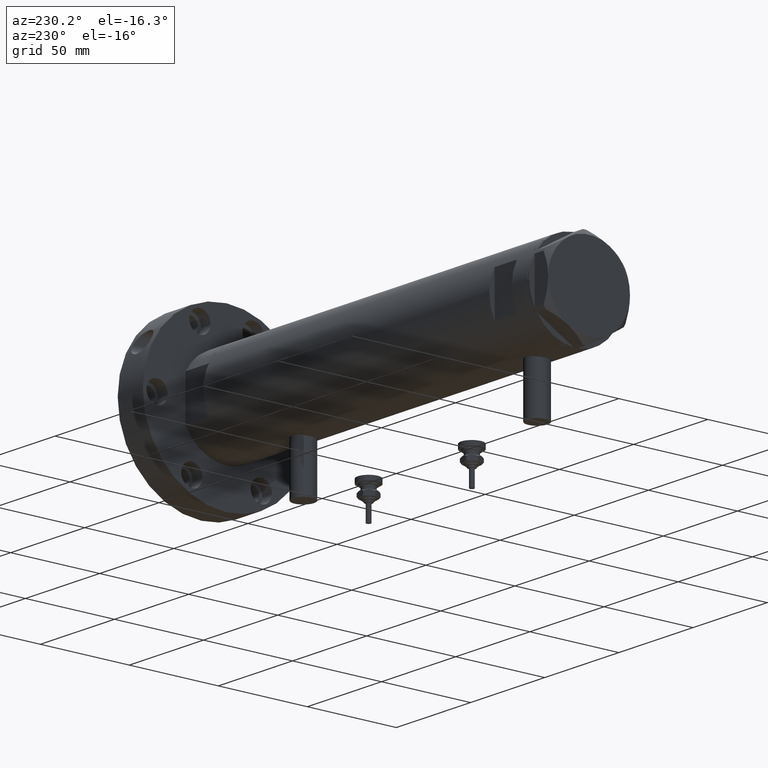
[diagram: clean part render]
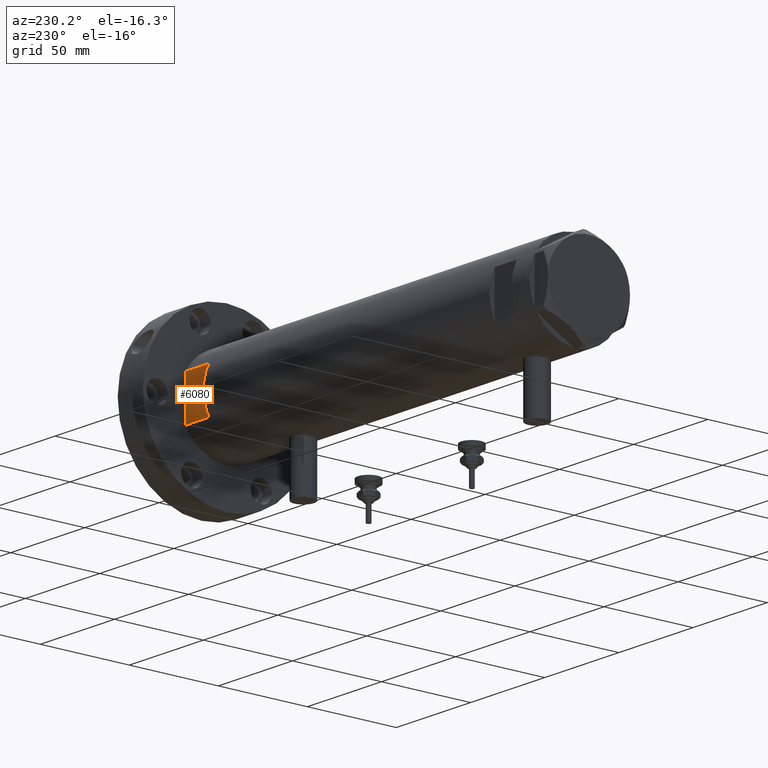
[diagram: same view with one face highlighted and labeled with its STEP entity id]
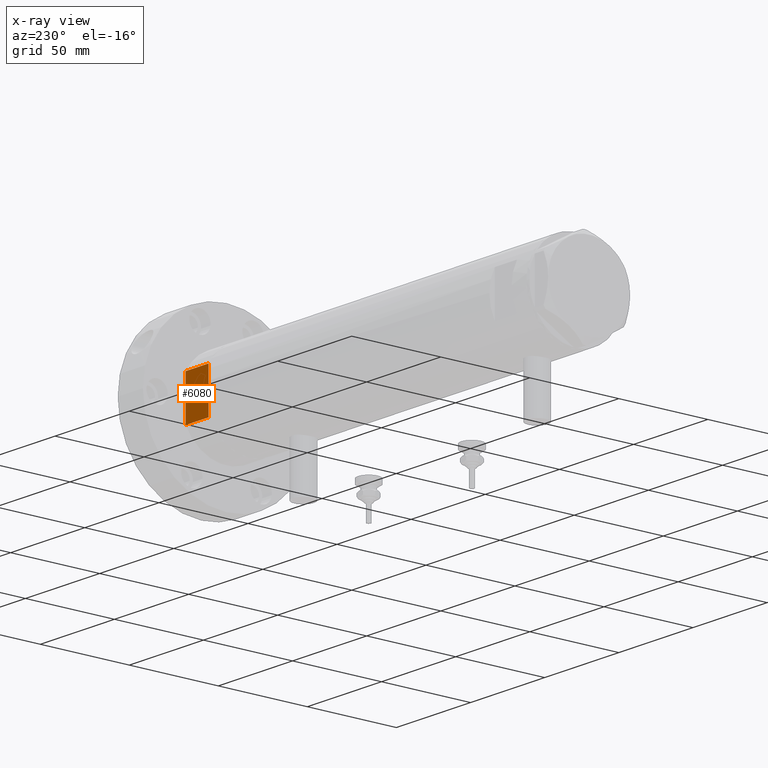
[diagram: x-ray of the same camera — body ghosted, the highlighted face saturated]
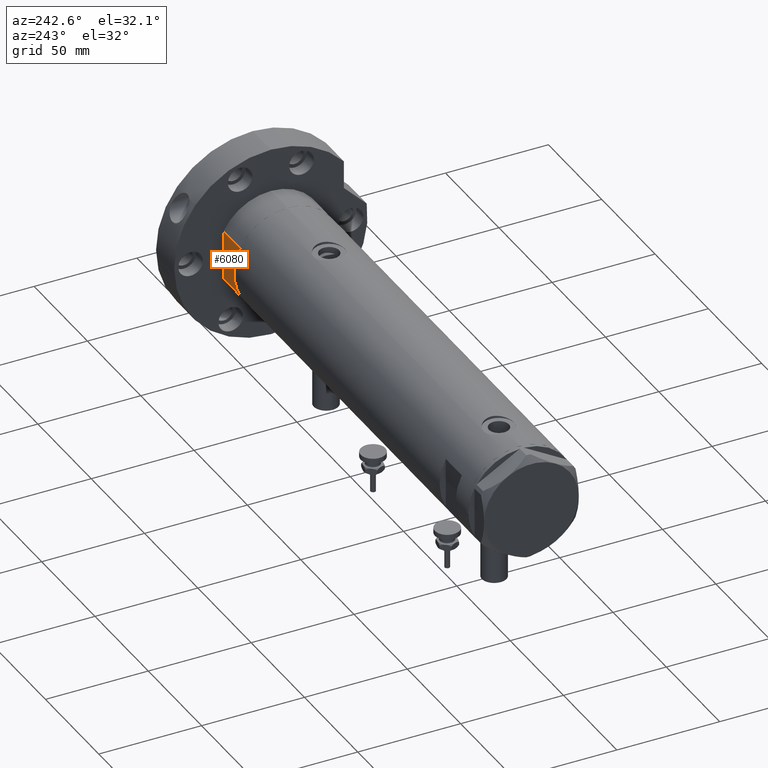
[diagram: same view with one face highlighted and labeled with its STEP entity id]
A machine part, auxiliary view. The second image highlights one B-rep face of the part: STEP entity #6080.
The next image is the same camera in x-ray: the body ghosted, the highlighted face saturated — about 0% of this face is hidden behind the body in this view.
A second angle (auxiliary view) of the same face is appended — the face is thin or edge-on in the first view.
In plain terms, the highlighted planar face has unit normal (0, -1, -0).
Its self-contained STEP definition (entity closure, byte-faithful):
#218 = CARTESIAN_POINT ( 'NONE',  ( 12.12435565298214790, 23.00000000000000355, 15.50000000000000000 ) ) ;
#592 = EDGE_CURVE ( 'NONE', #5536, #1307, #3382, .T. ) ;
#917 = VECTOR ( 'NONE', #5841, 1000.000000000000000 ) ;
#1307 = VERTEX_POINT ( 'NONE', #5624 ) ;
#1369 = ORIENTED_EDGE ( 'NONE', *, *, #1413, .F. ) ;
#1413 = EDGE_CURVE ( 'NONE', #3491, #2958, #3967, .T. ) ;
#1461 = ORIENTED_EDGE ( 'NONE', *, *, #592, .T. ) ;
#2444 = CARTESIAN_POINT ( 'NONE',  ( -12.12435565298215145, 23.00000000000000355, 0.000000000000000000 ) ) ;
#2587 = VECTOR ( 'NONE', #6538, 1000.000000000000000 ) ;
#2776 = CARTESIAN_POINT ( 'NONE',  ( -12.12435565298215145, 23.00000000000000355, 0.000000000000000000 ) ) ;
#2797 = DIRECTION ( 'NONE',  ( 0.000000000000000000, -1.000000000000000000, 0.000000000000000000 ) ) ;
#2857 = LINE ( 'NONE', #2776, #917 ) ;
#2958 = VERTEX_POINT ( 'NONE', #218 ) ;
#3285 = CARTESIAN_POINT ( 'NONE',  ( 12.12435565298215323, 23.00000000000000355, 0.000000000000000000 ) ) ;
#3382 = LINE ( 'NONE', #5088, #4208 ) ;
#3491 = VERTEX_POINT ( 'NONE', #7050 ) ;
#3967 = LINE ( 'NONE', #3285, #6537 ) ;
#4190 = CARTESIAN_POINT ( 'NONE',  ( -12.12435565298215145, 23.00000000000000355, 15.50000000000000000 ) ) ;
#4208 = VECTOR ( 'NONE', #4485, 1000.000000000000000 ) ;
#4456 = DIRECTION ( 'NONE',  ( -0.000000000000000000, -0.000000000000000000, 1.000000000000000000 ) ) ;
#4485 = DIRECTION ( 'NONE',  ( -0.000000000000000000, -0.000000000000000000, 1.000000000000000000 ) ) ;
#4648 = CARTESIAN_POINT ( 'NONE',  ( -12.12435565298215145, 23.00000000000000355, 0.000000000000000000 ) ) ;
#4651 = AXIS2_PLACEMENT_3D ( 'NONE', #4648, #2797, #5292 ) ;
#5030 = EDGE_CURVE ( 'NONE', #1307, #2958, #6576, .T. ) ;
#5088 = CARTESIAN_POINT ( 'NONE',  ( -12.12435565298215145, 23.00000000000000355, 0.000000000000000000 ) ) ;
#5165 = EDGE_LOOP ( 'NONE', ( #6508, #1369, #5183, #1461 ) ) ;
#5183 = ORIENTED_EDGE ( 'NONE', *, *, #5354, .F. ) ;
#5292 = DIRECTION ( 'NONE',  ( 0.000000000000000000, -0.000000000000000000, -1.000000000000000000 ) ) ;
#5354 = EDGE_CURVE ( 'NONE', #5536, #3491, #2857, .T. ) ;
#5536 = VERTEX_POINT ( 'NONE', #2444 ) ;
#5624 = CARTESIAN_POINT ( 'NONE',  ( -12.12435565298214613, 23.00000000000000355, 15.50000000000000000 ) ) ;
#5841 = DIRECTION ( 'NONE',  ( 1.000000000000000000, 0.000000000000000000, 0.000000000000000000 ) ) ;
#6080 = ADVANCED_FACE ( 'NONE', ( #7064 ), #7708, .F. ) ;
#6508 = ORIENTED_EDGE ( 'NONE', *, *, #5030, .T. ) ;
#6537 = VECTOR ( 'NONE', #4456, 1000.000000000000000 ) ;
#6538 = DIRECTION ( 'NONE',  ( 1.000000000000000000, 0.000000000000000000, 0.000000000000000000 ) ) ;
#6576 = LINE ( 'NONE', #4190, #2587 ) ;
#7050 = CARTESIAN_POINT ( 'NONE',  ( 12.12435565298214080, 23.00000000000000355, 0.000000000000000000 ) ) ;
#7064 = FACE_OUTER_BOUND ( 'NONE', #5165, .T. ) ;
#7708 = PLANE ( 'NONE',  #4651 ) ;